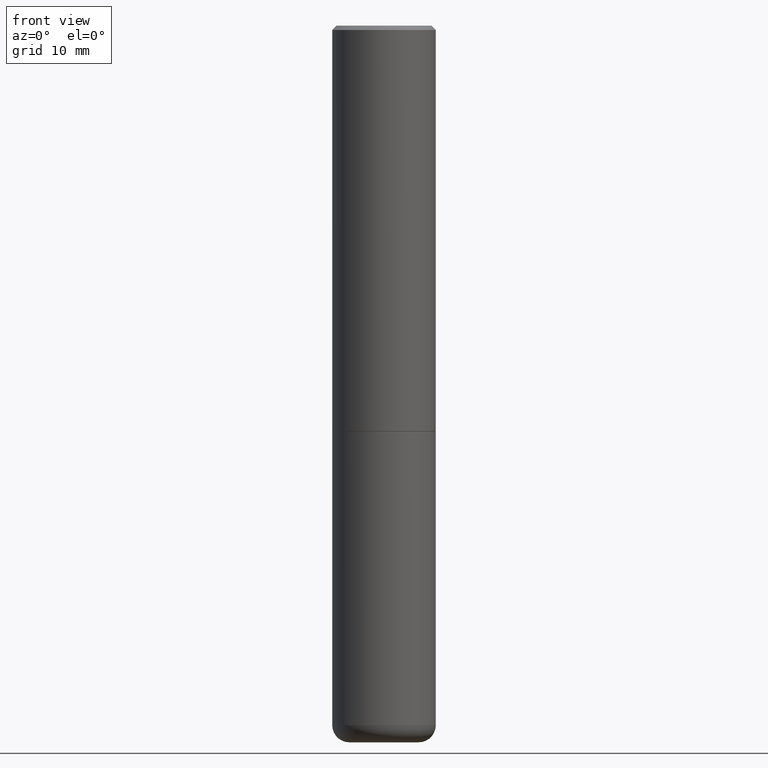
[diagram: clean part render]
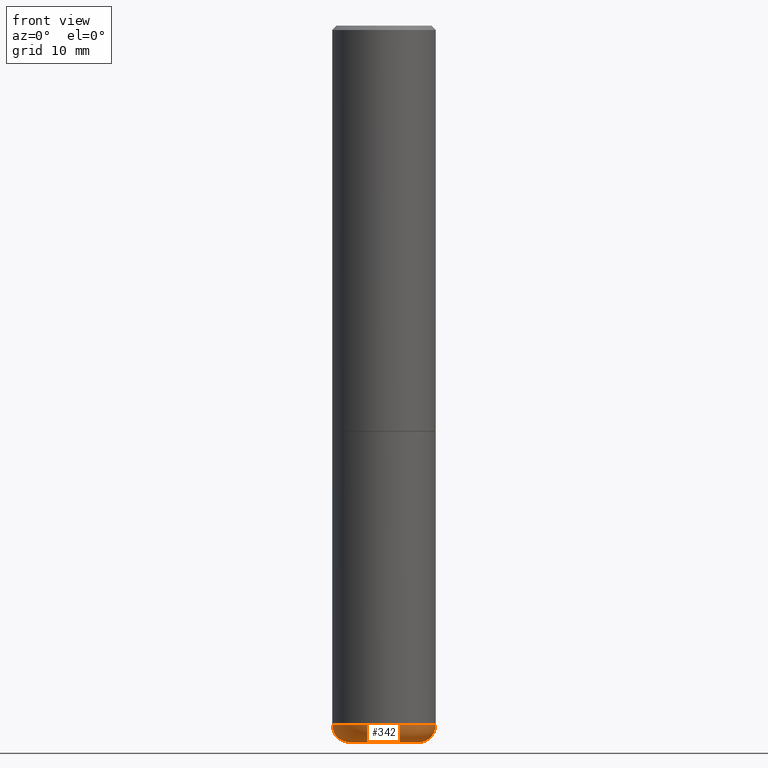
[diagram: same view with one face highlighted and labeled with its STEP entity id]
A machine part, front view. The second image highlights one B-rep face of the part: STEP entity #342.
In plain terms, the highlighted toroidal blend (fillet) surface has major radius 4.0005 mm and minor (blend) radius 1.999 mm.
Its self-contained STEP definition (entity closure, byte-faithful):
#4 = CIRCLE ( 'NONE', #230, 0.07869999999999993667 ) ;
#13 = CARTESIAN_POINT ( 'NONE',  ( 7.991058417971171713E-29, -1.140911357093774644E-14, -3.267700000000000049 ) ) ;
#51 = EDGE_CURVE ( 'NONE', #79, #180, #4, .T. ) ;
#57 = ORIENTED_EDGE ( 'NONE', *, *, #112, .T. ) ;
#60 = VERTEX_POINT ( 'NONE', #318 ) ;
#71 = CARTESIAN_POINT ( 'NONE',  ( -0.1575000000000000011, -1.001522918074863550E-14, -3.189000000000000501 ) ) ;
#72 = AXIS2_PLACEMENT_3D ( 'NONE', #13, #134, #257 ) ;
#79 = VERTEX_POINT ( 'NONE', #223 ) ;
#109 = CARTESIAN_POINT ( 'NONE',  ( -0.2361999999999999655, -9.456032047705438285E-15, -3.189000000000000501 ) ) ;
#112 = EDGE_CURVE ( 'NONE', #412, #60, #371, .T. ) ;
#119 = ORIENTED_EDGE ( 'NONE', *, *, #418, .T. ) ;
#134 = DIRECTION ( 'NONE',  ( -2.445468806185136597E-29, 3.491481338843145583E-15, 1.000000000000000000 ) ) ;
#135 = CIRCLE ( 'NONE', #258, 0.2361999999999999933 ) ;
#139 = CARTESIAN_POINT ( 'NONE',  ( 7.798600022924401307E-29, -1.113433398957079310E-14, -3.189000000000000501 ) ) ;
#158 = DIRECTION ( 'NONE',  ( -1.000000000000000000, 7.105427357600997914E-15, 0.000000000000000000 ) ) ;
#167 = DIRECTION ( 'NONE',  ( 1.000000000000000000, -6.982962677686265133E-15, 0.000000000000000000 ) ) ;
#180 = VERTEX_POINT ( 'NONE', #109 ) ;
#197 = FACE_OUTER_BOUND ( 'NONE', #312, .T. ) ;
#223 = CARTESIAN_POINT ( 'NONE',  ( -0.1575000000000000011, -9.873020404910514350E-15, -3.267700000000000049 ) ) ;
#229 = TOROIDAL_SURFACE ( 'NONE', #410, 0.1575000000000000011, 0.07869999999999995055 ) ;
#230 = AXIS2_PLACEMENT_3D ( 'NONE', #71, #248, #158 ) ;
#247 = CIRCLE ( 'NONE', #72, 0.1575000000000000011 ) ;
#248 = DIRECTION ( 'NONE',  ( 7.105427357601001859E-15, 1.000000000000000000, -3.491481338843145583E-15 ) ) ;
#255 = DIRECTION ( 'NONE',  ( -2.445468806185136597E-29, 3.491481338843145583E-15, 1.000000000000000000 ) ) ;
#257 = DIRECTION ( 'NONE',  ( 1.000000000000000000, -6.982962677686261977E-15, 0.000000000000000000 ) ) ;
#258 = AXIS2_PLACEMENT_3D ( 'NONE', #403, #336, #167 ) ;
#280 = CARTESIAN_POINT ( 'NONE',  ( 0.1575000000000000011, -1.223415061130637979E-14, -3.189000000000000501 ) ) ;
#295 = CARTESIAN_POINT ( 'NONE',  ( 0.1575000000000000011, -1.250893019267333313E-14, -3.267700000000000049 ) ) ;
#306 = AXIS2_PLACEMENT_3D ( 'NONE', #280, #385, #391 ) ;
#312 = EDGE_LOOP ( 'NONE', ( #347, #119, #57, #388 ) ) ;
#318 = CARTESIAN_POINT ( 'NONE',  ( 0.2361999999999999655, -1.278370977404028805E-14, -3.189000000000000501 ) ) ;
#336 = DIRECTION ( 'NONE',  ( -2.445468806185136597E-29, 3.491481338843145583E-15, 1.000000000000000000 ) ) ;
#342 = ADVANCED_FACE ( 'NONE', ( #197 ), #229, .T. ) ;
#347 = ORIENTED_EDGE ( 'NONE', *, *, #51, .F. ) ;
#362 = DIRECTION ( 'NONE',  ( 1.000000000000000000, -6.982962677686266711E-15, 4.883557194083113462E-29 ) ) ;
#371 = CIRCLE ( 'NONE', #306, 0.07869999999999993667 ) ;
#385 = DIRECTION ( 'NONE',  ( -6.982962677686266711E-15, -1.000000000000000000, 3.491481338843145583E-15 ) ) ;
#388 = ORIENTED_EDGE ( 'NONE', *, *, #404, .F. ) ;
#391 = DIRECTION ( 'NONE',  ( 1.000000000000000000, -6.982962677686275388E-15, 0.000000000000000000 ) ) ;
#403 = CARTESIAN_POINT ( 'NONE',  ( 7.798600022924401307E-29, -1.113433398957079310E-14, -3.189000000000000501 ) ) ;
#404 = EDGE_CURVE ( 'NONE', #180, #60, #135, .T. ) ;
#410 = AXIS2_PLACEMENT_3D ( 'NONE', #139, #255, #362 ) ;
#412 = VERTEX_POINT ( 'NONE', #295 ) ;
#418 = EDGE_CURVE ( 'NONE', #79, #412, #247, .T. ) ;